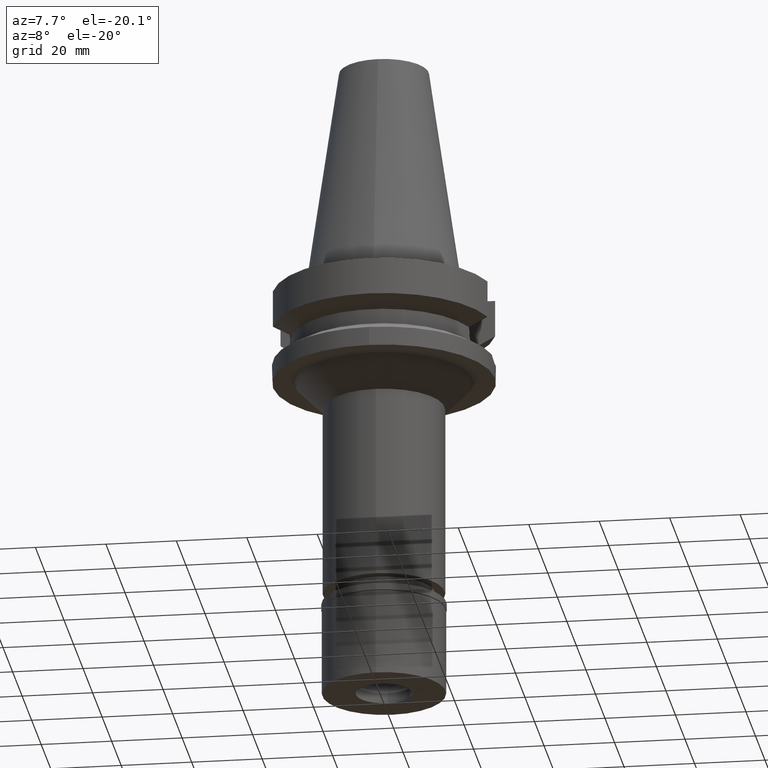
[diagram: clean part render]
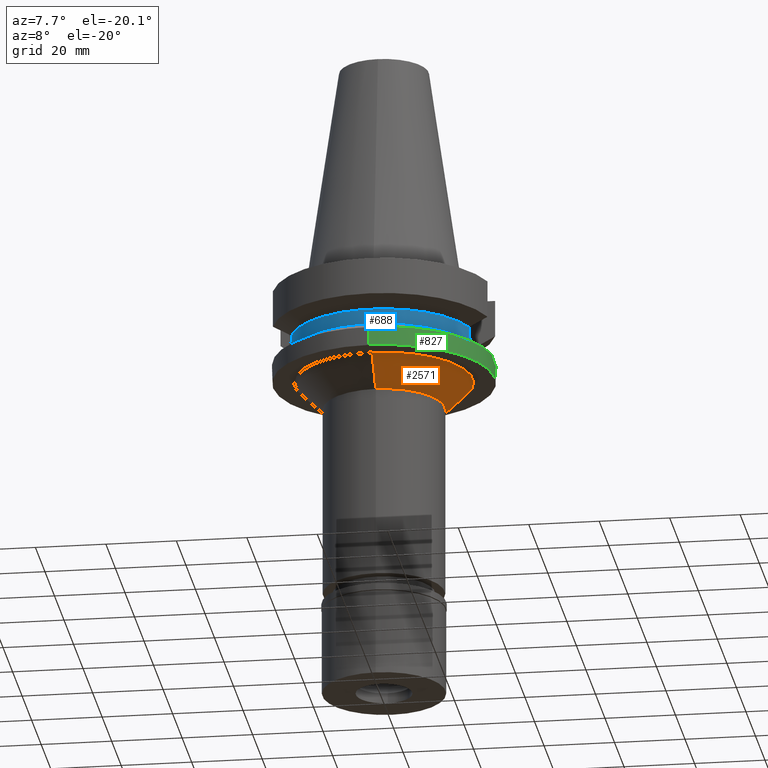
[diagram: same view with three faces highlighted in distinct colors, each labeled with its STEP entity id]
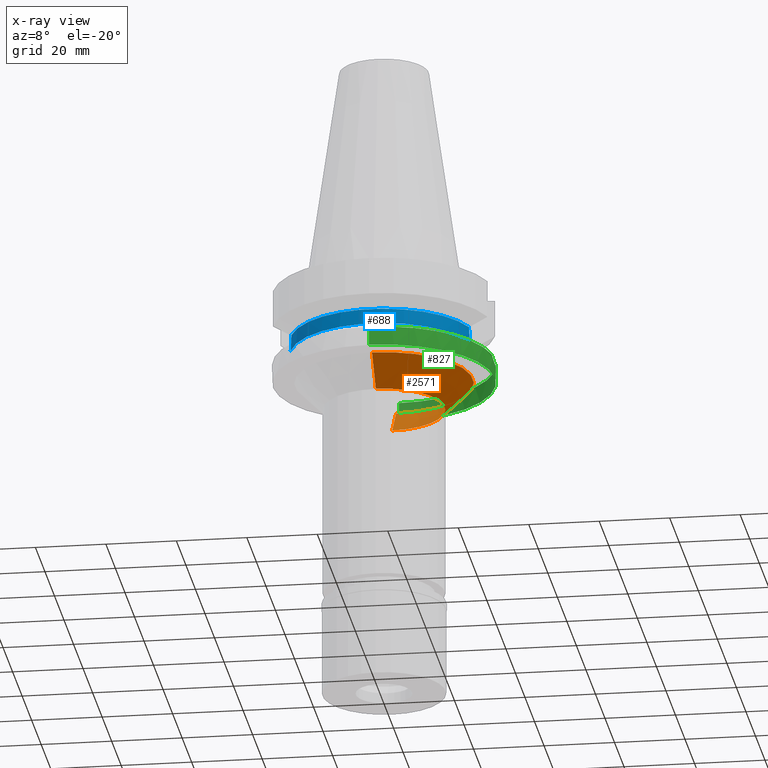
[diagram: x-ray of the same camera — body ghosted, the three highlighted faces saturated]
A machine part, auxiliary view with three faces highlighted in distinct colors.
The next image is the same camera in x-ray (body ghosted, the three faces saturated) — at least one of them is partly hidden behind the body in this view.
Their STEP definitions:

[orange] entity #2571 — the highlighted conical surface has half-angle 45 deg.
#6 = DIRECTION ( 'NONE',  ( 0.0000000000000000000, 0.0000000000000000000, -1.000000000000000000 ) ) ;
#9 = LINE ( 'NONE', #1405, #2650 ) ;
#50 = ORIENTED_EDGE ( 'NONE', *, *, #811, .F. ) ;
#66 = VECTOR ( 'NONE', #1229, 1000.000000000000114 ) ;
#201 = DIRECTION ( 'NONE',  ( 0.0000000000000000000, 0.0000000000000000000, 1.000000000000000000 ) ) ;
#263 = LINE ( 'NONE', #2226, #66 ) ;
#318 = CIRCLE ( 'NONE', #2488, 25.25000000000000000 ) ;
#344 = EDGE_CURVE ( 'NONE', #1218, #2852, #263, .T. ) ;
#632 = DIRECTION ( 'NONE',  ( 0.0000000000000000000, 0.0000000000000000000, -1.000000000000000000 ) ) ;
#679 = DIRECTION ( 'NONE',  ( 0.0000000000000000000, 1.000000000000000000, 0.0000000000000000000 ) ) ;
#811 = EDGE_CURVE ( 'NONE', #2852, #1537, #1529, .T. ) ;
#947 = CARTESIAN_POINT ( 'NONE',  ( 0.0000000000000000000, 0.0000000000000000000, -35.00000000000000000 ) ) ;
#1148 = DIRECTION ( 'NONE',  ( 0.0000000000000000000, 1.000000000000000000, 0.0000000000000000000 ) ) ;
#1205 = CARTESIAN_POINT ( 'NONE',  ( 0.0000000000000000000, -17.25000000000000000, -35.00000000000000000 ) ) ;
#1218 = VERTEX_POINT ( 'NONE', #1333 ) ;
#1229 = DIRECTION ( 'NONE',  ( 0.0000000000000000000, -0.7071067811865474617, -0.7071067811865474617 ) ) ;
#1295 = CONICAL_SURFACE ( 'NONE', #1388, 21.25000000000000000, 0.7853981633972997312 ) ;
#1310 = EDGE_CURVE ( 'NONE', #1218, #2656, #318, .T. ) ;
#1333 = CARTESIAN_POINT ( 'NONE',  ( 0.0000000000000000000, 25.25000000000000000, -27.00000000000000000 ) ) ;
#1388 = AXIS2_PLACEMENT_3D ( 'NONE', #2083, #201, #1148 ) ;
#1405 = CARTESIAN_POINT ( 'NONE',  ( 0.0000000000000000000, -25.25000000000000000, -27.00000000000000000 ) ) ;
#1529 = CIRCLE ( 'NONE', #2033, 17.25000000000000000 ) ;
#1537 = VERTEX_POINT ( 'NONE', #1205 ) ;
#1605 = ORIENTED_EDGE ( 'NONE', *, *, #344, .F. ) ;
#1896 = EDGE_CURVE ( 'NONE', #2656, #1537, #9, .T. ) ;
#1904 = EDGE_LOOP ( 'NONE', ( #2326, #2085, #50, #1605 ) ) ;
#2033 = AXIS2_PLACEMENT_3D ( 'NONE', #947, #6, #679 ) ;
#2083 = CARTESIAN_POINT ( 'NONE',  ( 0.0000000000000000000, 0.0000000000000000000, -31.00000000000000000 ) ) ;
#2085 = ORIENTED_EDGE ( 'NONE', *, *, #1896, .T. ) ;
#2226 = CARTESIAN_POINT ( 'NONE',  ( 0.0000000000000000000, 25.25000000000000000, -27.00000000000000000 ) ) ;
#2326 = ORIENTED_EDGE ( 'NONE', *, *, #1310, .T. ) ;
#2488 = AXIS2_PLACEMENT_3D ( 'NONE', #2790, #632, #2803 ) ;
#2563 = FACE_OUTER_BOUND ( 'NONE', #1904, .T. ) ;
#2571 = ADVANCED_FACE ( 'NONE', ( #2563 ), #1295, .T. ) ;
#2650 = VECTOR ( 'NONE', #2861, 1000.000000000000114 ) ;
#2656 = VERTEX_POINT ( 'NONE', #2836 ) ;
#2697 = CARTESIAN_POINT ( 'NONE',  ( 0.0000000000000000000, 17.25000000000000000, -35.00000000000000000 ) ) ;
#2790 = CARTESIAN_POINT ( 'NONE',  ( 0.0000000000000000000, 0.0000000000000000000, -27.00000000000000000 ) ) ;
#2803 = DIRECTION ( 'NONE',  ( 0.0000000000000000000, 1.000000000000000000, 0.0000000000000000000 ) ) ;
#2836 = CARTESIAN_POINT ( 'NONE',  ( 0.0000000000000000000, -25.25000000000000000, -27.00000000000000000 ) ) ;
#2852 = VERTEX_POINT ( 'NONE', #2697 ) ;
#2861 = DIRECTION ( 'NONE',  ( 0.0000000000000000000, 0.7071067811865474617, -0.7071067811865474617 ) ) ;

[blue] entity #688 — the highlighted cylindrical surface (partial cylindrical patch) has radius 26.5 mm, axis along (0, 0, -1).
#47 = CARTESIAN_POINT ( 'NONE',  ( -25.24772266958000344, -8.049999999999997158, -15.58980474828395124 ) ) ;
#63 = CARTESIAN_POINT ( 'NONE',  ( -25.27267964220134999, -7.973335156003495960, -16.24499043123465469 ) ) ;
#121 = ORIENTED_EDGE ( 'NONE', *, *, #1439, .F. ) ;
#151 = DIRECTION ( 'NONE',  ( 0.0000000000000000000, 0.0000000000000000000, -1.000000000000000000 ) ) ;
#169 = CARTESIAN_POINT ( 'NONE',  ( 0.0000000000000000000, 0.0000000000000000000, 0.0000000000000000000 ) ) ;
#178 = VERTEX_POINT ( 'NONE', #510 ) ;
#211 = VERTEX_POINT ( 'NONE', #491 ) ;
#242 = VERTEX_POINT ( 'NONE', #2720 ) ;
#253 = CARTESIAN_POINT ( 'NONE',  ( -25.53175183775000079, -7.097862220092999941, -18.74774300138999905 ) ) ;
#429 = CARTESIAN_POINT ( 'NONE',  ( -25.24772266958000344, -8.050000000000000711, -14.94999999999999929 ) ) ;
#483 = CARTESIAN_POINT ( 'NONE',  ( -25.53175183775000079, -7.097862220092999941, -18.74774300138999905 ) ) ;
#491 = CARTESIAN_POINT ( 'NONE',  ( -25.24772266958000344, -8.050000000000000711, -14.94999999999999929 ) ) ;
#510 = CARTESIAN_POINT ( 'NONE',  ( -25.24772413135000093, -8.049995415363998319, -14.45229203120999983 ) ) ;
#592 = DIRECTION ( 'NONE',  ( 0.0000000000000000000, -1.000000000000000000, 0.0000000000000000000 ) ) ;
#619 = DIRECTION ( 'NONE',  ( 0.0000000000000000000, -1.000000000000000000, 0.0000000000000000000 ) ) ;
#662 = B_SPLINE_CURVE_WITH_KNOTS ( 'NONE', 3,
 ( #717, #2896, #989, #2168, #950, #1897, #700, #738, #2204, #1971, #1170, #1696, #2659, #683 ),
 .UNSPECIFIED., .F., .F.,
 ( 4, 2, 2, 1, 1, 2, 2, 4 ),
 ( 0.0000000000000000000, 0.2499999999999802380, 0.3749999999999716893, 0.4374999999999675260, 0.4687499999999653055, 0.4843749999999642508, 0.4999999999999631406, 1.000000000000000000 ),
 .UNSPECIFIED. ) ;
#683 = CARTESIAN_POINT ( 'NONE',  ( 25.53175183775000079, -7.097862220092999941, -18.74774300138999905 ) ) ;
#688 = ADVANCED_FACE ( 'NONE', ( #2332 ), #1346, .T. ) ;
#700 = CARTESIAN_POINT ( 'NONE',  ( 25.30212919435223284, -7.877667573928276212, -16.61042047343354255 ) ) ;
#717 = CARTESIAN_POINT ( 'NONE',  ( 25.24772266958000344, -8.050000000000000711, -14.94999999999999929 ) ) ;
#720 = ORIENTED_EDGE ( 'NONE', *, *, #2098, .T. ) ;
#738 = CARTESIAN_POINT ( 'NONE',  ( 25.31202572170775156, -7.845729406561155805, -16.75279821065855757 ) ) ;
#795 = CIRCLE ( 'NONE', #2392, 26.50000000000000711 ) ;
#903 = DIRECTION ( 'NONE',  ( 1.015936079808008228E-06, 3.186346227935026084E-06, -0.9999999999944074736 ) ) ;
#904 = VERTEX_POINT ( 'NONE', #3090 ) ;
#915 = EDGE_CURVE ( 'NONE', #211, #178, #2397, .T. ) ;
#950 = CARTESIAN_POINT ( 'NONE',  ( 25.28048358772242565, -7.947040743729065326, -16.24400980703460817 ) ) ;
#989 = CARTESIAN_POINT ( 'NONE',  ( 25.25396284446427586, -8.030907492737396680, -15.59360398779302592 ) ) ;
#1170 = CARTESIAN_POINT ( 'NONE',  ( 25.32118155423427197, -7.816096717230704982, -16.87652453445180356 ) ) ;
#1209 = EDGE_LOOP ( 'NONE', ( #2341, #2175, #2485, #121, #720, #2860 ) ) ;
#1220 = AXIS2_PLACEMENT_3D ( 'NONE', #169, #2775, #619 ) ;
#1330 = CARTESIAN_POINT ( 'NONE',  ( 0.0000000000000000000, 0.0000000000000000000, -14.45225699861000024 ) ) ;
#1346 = CYLINDRICAL_SURFACE ( 'NONE', #1220, 26.50000000000000000 ) ;
#1439 = EDGE_CURVE ( 'NONE', #904, #242, #1661, .T. ) ;
#1446 = CIRCLE ( 'NONE', #2053, 26.50000000000000000 ) ;
#1455 = DIRECTION ( 'NONE',  ( -2.936997819735885950E-06, 9.211497301376640057E-06, 0.9999999999532611650 ) ) ;
#1498 = CARTESIAN_POINT ( 'NONE',  ( -25.32546393109256400, -7.802212764488517749, -16.93200521433119476 ) ) ;
#1513 = CARTESIAN_POINT ( 'NONE',  ( -25.34384264179432122, -7.742472632678496502, -17.15618260524923855 ) ) ;
#1580 = VECTOR ( 'NONE', #1455, 1000.000000000000114 ) ;
#1661 = LINE ( 'NONE', #2134, #2093 ) ;
#1684 = VERTEX_POINT ( 'NONE', #1731 ) ;
#1696 = CARTESIAN_POINT ( 'NONE',  ( 25.36814761481407388, -7.663830712787968125, -17.48803584566239522 ) ) ;
#1719 = CARTESIAN_POINT ( 'NONE',  ( 0.0000000000000000000, 0.0000000000000000000, -18.74774300138999905 ) ) ;
#1731 = CARTESIAN_POINT ( 'NONE',  ( 25.53175183775000079, -7.097862220092999941, -18.74774300138999905 ) ) ;
#1759 = B_SPLINE_CURVE_WITH_KNOTS ( 'NONE', 3,
 ( #253, #2206, #2920, #2221, #2155, #2439, #1513, #1917, #2661, #1498, #2419, #63, #47, #2642 ),
 .UNSPECIFIED., .F., .F.,
 ( 4, 2, 2, 1, 1, 2, 2, 4 ),
 ( 0.0000000000000000000, 0.2499999999999921174, 0.3749999999999881761, 0.4374999999999861222, 0.4687499999999865108, 0.4843749999999866218, 0.4999999999999866773, 1.000000000000000000 ),
 .UNSPECIFIED. ) ;
#1837 = EDGE_CURVE ( 'NONE', #242, #1684, #662, .T. ) ;
#1897 = CARTESIAN_POINT ( 'NONE',  ( 25.29452398121202705, -7.902090651739900551, -16.48828405129962604 ) ) ;
#1917 = CARTESIAN_POINT ( 'NONE',  ( -25.33288764353040534, -7.778115188357301868, -17.02509724676229297 ) ) ;
#1971 = CARTESIAN_POINT ( 'NONE',  ( 25.31950905643224559, -7.821515286682111601, -16.85442525726396568 ) ) ;
#2053 = AXIS2_PLACEMENT_3D ( 'NONE', #1719, #2157, #592 ) ;
#2093 = VECTOR ( 'NONE', #903, 1000.000000000000227 ) ;
#2098 = EDGE_CURVE ( 'NONE', #904, #178, #795, .T. ) ;
#2134 = CARTESIAN_POINT ( 'NONE',  ( 25.24772216389000334, -8.050001586020000488, -14.45224488001999852 ) ) ;
#2155 = CARTESIAN_POINT ( 'NONE',  ( -25.37569502946231381, -7.637838761525059361, -17.49780446169117809 ) ) ;
#2157 = DIRECTION ( 'NONE',  ( 0.0000000000000000000, 0.0000000000000000000, 1.000000000000000000 ) ) ;
#2168 = CARTESIAN_POINT ( 'NONE',  ( 25.27268336911708602, -7.971811480119975535, -16.08115959878772472 ) ) ;
#2175 = ORIENTED_EDGE ( 'NONE', *, *, #2807, .T. ) ;
#2204 = CARTESIAN_POINT ( 'NONE',  ( 25.31648647172267985, -7.831300037036133865, -16.81378020974167953 ) ) ;
#2206 = CARTESIAN_POINT ( 'NONE',  ( -25.48480632954720804, -7.266730116954877694, -18.43213421351286740 ) ) ;
#2221 = CARTESIAN_POINT ( 'NONE',  ( -25.39161415867715732, -7.584927955075060346, -17.65164487453349906 ) ) ;
#2332 = FACE_OUTER_BOUND ( 'NONE', #1209, .T. ) ;
#2341 = ORIENTED_EDGE ( 'NONE', *, *, #3016, .F. ) ;
#2392 = AXIS2_PLACEMENT_3D ( 'NONE', #1330, #151, #3065 ) ;
#2397 = LINE ( 'NONE', #429, #1580 ) ;
#2419 = CARTESIAN_POINT ( 'NONE',  ( -25.32415339823289102, -7.806463147631060195, -16.91521530244357052 ) ) ;
#2439 = CARTESIAN_POINT ( 'NONE',  ( -25.35408242310599647, -7.708967322968012681, -17.26962711312151200 ) ) ;
#2485 = ORIENTED_EDGE ( 'NONE', *, *, #1837, .F. ) ;
#2642 = CARTESIAN_POINT ( 'NONE',  ( -25.24772266958000344, -8.050000000000000711, -14.94999999999999929 ) ) ;
#2659 = CARTESIAN_POINT ( 'NONE',  ( 25.43786330466700107, -7.435589081068775030, -18.11654212066471814 ) ) ;
#2661 = CARTESIAN_POINT ( 'NONE',  ( -25.32840508997437823, -7.792668837071429877, -16.96920308233706720 ) ) ;
#2720 = CARTESIAN_POINT ( 'NONE',  ( 25.24772266958000344, -8.050000000000000711, -14.94999999999999929 ) ) ;
#2754 = VERTEX_POINT ( 'NONE', #483 ) ;
#2775 = DIRECTION ( 'NONE',  ( 0.0000000000000000000, 0.0000000000000000000, -1.000000000000000000 ) ) ;
#2807 = EDGE_CURVE ( 'NONE', #2754, #1684, #1446, .T. ) ;
#2860 = ORIENTED_EDGE ( 'NONE', *, *, #915, .F. ) ;
#2896 = CARTESIAN_POINT ( 'NONE',  ( 25.24772266958000344, -8.050000000000000711, -15.26991324139337358 ) ) ;
#2920 = CARTESIAN_POINT ( 'NONE',  ( -25.44390372125364053, -7.408325733511035516, -18.11690357814810426 ) ) ;
#3016 = EDGE_CURVE ( 'NONE', #2754, #211, #1759, .T. ) ;
#3065 = DIRECTION ( 'NONE',  ( 0.9527442516822307583, -0.3037735849057093818, 0.0000000000000000000 ) ) ;
#3090 = CARTESIAN_POINT ( 'NONE',  ( 25.24772266958000344, -8.050000000000000711, -14.45225699861000024 ) ) ;

[green] entity #827 — the highlighted cylindrical surface (partial cylindrical patch) has radius 31.5 mm, axis along (0, 0, -1).
#62 = VERTEX_POINT ( 'NONE', #1097 ) ;
#225 = ORIENTED_EDGE ( 'NONE', *, *, #316, .T. ) ;
#297 = LINE ( 'NONE', #776, #1503 ) ;
#316 = EDGE_CURVE ( 'NONE', #348, #1467, #1523, .T. ) ;
#348 = VERTEX_POINT ( 'NONE', #1796 ) ;
#406 = B_SPLINE_CURVE_WITH_KNOTS ( 'NONE', 3,
 ( #1852, #2105, #629, #901, #458, #677, #2130, #2377, #1637, #751, #1402, #2599 ),
 .UNSPECIFIED., .F., .F.,
 ( 4, 2, 2, 2, 2, 4 ),
 ( 0.0000000000000000000, 0.2500000000000005551, 0.5000000000000011102, 0.6250000000000008882, 0.7500000000000007772, 1.000000000000000000 ),
 .UNSPECIFIED. ) ;
#458 = CARTESIAN_POINT ( 'NONE',  ( 31.44158116646596923, -1.955103411715561013, -22.76909304465759476 ) ) ;
#459 = FACE_OUTER_BOUND ( 'NONE', #1266, .T. ) ;
#629 = CARTESIAN_POINT ( 'NONE',  ( 31.49259412242495060, -0.7874781761588219853, -22.97109479641749985 ) ) ;
#636 = CARTESIAN_POINT ( 'NONE',  ( 0.0000000000000000000, -31.50000000000000000, -27.00000000000000000 ) ) ;
#677 = CARTESIAN_POINT ( 'NONE',  ( 31.39916663536083874, -2.525608541388664197, -22.59614456801665483 ) ) ;
#684 = AXIS2_PLACEMENT_3D ( 'NONE', #2293, #873, #2058 ) ;
#748 = CARTESIAN_POINT ( 'NONE',  ( 0.0000000000000000000, 0.0000000000000000000, -21.63449434733000132 ) ) ;
#751 = CARTESIAN_POINT ( 'NONE',  ( 31.27123001953995640, -3.806912311195480569, -22.05416774109503208 ) ) ;
#752 = DIRECTION ( 'NONE',  ( 0.0000000000000000000, 0.0000000000000000000, 1.000000000000000000 ) ) ;
#776 = CARTESIAN_POINT ( 'NONE',  ( 0.0000000000000000000, 31.50000000000000000, -21.63449434733000132 ) ) ;
#779 = DIRECTION ( 'NONE',  ( 0.0000000000000000000, 1.000000000000000000, 0.0000000000000000000 ) ) ;
#789 = CARTESIAN_POINT ( 'NONE',  ( 0.0000000000000000000, -31.50000000000000000, -21.63449434733000132 ) ) ;
#814 = CARTESIAN_POINT ( 'NONE',  ( 31.49999994687999916, 0.0000000000000000000, -22.99999998957000003 ) ) ;
#827 = ADVANCED_FACE ( 'NONE', ( #459 ), #2827, .T. ) ;
#873 = DIRECTION ( 'NONE',  ( 0.0000000000000000000, 0.0000000000000000000, -1.000000000000000000 ) ) ;
#901 = CARTESIAN_POINT ( 'NONE',  ( 31.46325238243952072, -1.570781957062914236, -22.85518007120730388 ) ) ;
#916 = CARTESIAN_POINT ( 'NONE',  ( 0.0000000000000000000, -31.50000000000000000, -21.63449434733000132 ) ) ;
#917 = ORIENTED_EDGE ( 'NONE', *, *, #2217, .T. ) ;
#993 = LINE ( 'NONE', #789, #1140 ) ;
#1016 = DIRECTION ( 'NONE',  ( 0.0000000000000000000, 0.0000000000000000000, -1.000000000000000000 ) ) ;
#1035 = EDGE_CURVE ( 'NONE', #1172, #1516, #1075, .T. ) ;
#1075 = CIRCLE ( 'NONE', #2834, 31.50000000000000000 ) ;
#1081 = CARTESIAN_POINT ( 'NONE',  ( 31.17899877608999759, 4.485536235554000051, -21.63449434733000132 ) ) ;
#1097 = CARTESIAN_POINT ( 'NONE',  ( 31.17899877608999759, -4.485536235554000051, -21.63449434733000132 ) ) ;
#1140 = VECTOR ( 'NONE', #1262, 1000.000000000000000 ) ;
#1172 = VERTEX_POINT ( 'NONE', #636 ) ;
#1238 = CARTESIAN_POINT ( 'NONE',  ( 31.49999994687999916, 0.0000000000000000000, -22.99999998957000003 ) ) ;
#1262 = DIRECTION ( 'NONE',  ( 0.0000000000000000000, -1.099151708819000049E-13, -1.000000000000000000 ) ) ;
#1266 = EDGE_LOOP ( 'NONE', ( #2576, #2523, #1548, #2379, #225, #1566, #917 ) ) ;
#1402 = CARTESIAN_POINT ( 'NONE',  ( 31.22673952725636681, -4.153689886764722061, -21.85717518821190097 ) ) ;
#1407 = VERTEX_POINT ( 'NONE', #916 ) ;
#1420 = CARTESIAN_POINT ( 'NONE',  ( 0.0000000000000000000, 0.0000000000000000000, 0.0000000000000000000 ) ) ;
#1465 = DIRECTION ( 'NONE',  ( 0.0000000000000000000, 1.099151708819000049E-13, -1.000000000000000000 ) ) ;
#1467 = VERTEX_POINT ( 'NONE', #2604 ) ;
#1503 = VECTOR ( 'NONE', #1465, 1000.000000000000000 ) ;
#1516 = VERTEX_POINT ( 'NONE', #2169 ) ;
#1523 = CIRCLE ( 'NONE', #2737, 31.50000000000000000 ) ;
#1548 = ORIENTED_EDGE ( 'NONE', *, *, #1035, .T. ) ;
#1566 = ORIENTED_EDGE ( 'NONE', *, *, #2010, .T. ) ;
#1624 = AXIS2_PLACEMENT_3D ( 'NONE', #1420, #1910, #1692 ) ;
#1637 = CARTESIAN_POINT ( 'NONE',  ( 31.33092732167464689, -3.264367509023630376, -22.31112413842158659 ) ) ;
#1692 = DIRECTION ( 'NONE',  ( 0.0000000000000000000, -1.000000000000000000, 0.0000000000000000000 ) ) ;
#1796 = CARTESIAN_POINT ( 'NONE',  ( 0.0000000000000000000, 31.50000000000000000, -21.63449434733000132 ) ) ;
#1822 = VERTEX_POINT ( 'NONE', #1238 ) ;
#1852 = CARTESIAN_POINT ( 'NONE',  ( 31.49999994687999916, 0.0000000000000000000, -22.99999998957000003 ) ) ;
#1910 = DIRECTION ( 'NONE',  ( 0.0000000000000000000, 0.0000000000000000000, -1.000000000000000000 ) ) ;
#2010 = EDGE_CURVE ( 'NONE', #1467, #1822, #2608, .T. ) ;
#2058 = DIRECTION ( 'NONE',  ( 0.9898094849552905306, -0.1423979757318985240, 0.0000000000000000000 ) ) ;
#2105 = CARTESIAN_POINT ( 'NONE',  ( 31.50000000000000711, -0.3946751339968562200, -22.99999998957000003 ) ) ;
#2114 = EDGE_CURVE ( 'NONE', #62, #1407, #2653, .T. ) ;
#2130 = CARTESIAN_POINT ( 'NONE',  ( 31.38348490648153799, -2.713186403075953823, -22.53162631738891264 ) ) ;
#2169 = CARTESIAN_POINT ( 'NONE',  ( 0.0000000000000000000, 31.50000000000000000, -27.00000000000000000 ) ) ;
#2217 = EDGE_CURVE ( 'NONE', #1822, #62, #406, .T. ) ;
#2266 = CARTESIAN_POINT ( 'NONE',  ( 31.50000000000000000, 0.7893756722539666537, -22.99999998957000358 ) ) ;
#2280 = CARTESIAN_POINT ( 'NONE',  ( 31.35694685681279736, 3.093519140186014038, -22.42398081544561705 ) ) ;
#2293 = CARTESIAN_POINT ( 'NONE',  ( 0.0000000000000000000, 0.0000000000000000000, -21.63449434733000132 ) ) ;
#2377 = CARTESIAN_POINT ( 'NONE',  ( 31.34930395801385927, -3.083122878065013950, -22.38885229930528808 ) ) ;
#2379 = ORIENTED_EDGE ( 'NONE', *, *, #2812, .F. ) ;
#2487 = CARTESIAN_POINT ( 'NONE',  ( 31.46967416866528566, 1.577207839734384054, -22.88365376544188123 ) ) ;
#2523 = ORIENTED_EDGE ( 'NONE', *, *, #3004, .T. ) ;
#2576 = ORIENTED_EDGE ( 'NONE', *, *, #2114, .T. ) ;
#2599 = CARTESIAN_POINT ( 'NONE',  ( 31.17899877608999759, -4.485536235554000051, -21.63449434733000132 ) ) ;
#2604 = CARTESIAN_POINT ( 'NONE',  ( 31.17899877608999759, 4.485536235554000051, -21.63449434733000132 ) ) ;
#2608 = B_SPLINE_CURVE_WITH_KNOTS ( 'NONE', 3,
 ( #1081, #2728, #2280, #2487, #2266, #814 ),
 .UNSPECIFIED., .F., .F.,
 ( 4, 2, 4 ),
 ( 0.0000000000000000000, 0.5000000000000000000, 1.000000000000000000 ),
 .UNSPECIFIED. ) ;
#2653 = CIRCLE ( 'NONE', #684, 31.50000000000001421 ) ;
#2728 = CARTESIAN_POINT ( 'NONE',  ( 31.27447715648698434, 3.821865238563812994, -22.07984146721787155 ) ) ;
#2737 = AXIS2_PLACEMENT_3D ( 'NONE', #748, #1016, #779 ) ;
#2812 = EDGE_CURVE ( 'NONE', #348, #1516, #297, .T. ) ;
#2827 = CYLINDRICAL_SURFACE ( 'NONE', #1624, 31.50000000000000000 ) ;
#2834 = AXIS2_PLACEMENT_3D ( 'NONE', #2959, #752, #2929 ) ;
#2929 = DIRECTION ( 'NONE',  ( 0.0000000000000000000, -1.000000000000000000, 0.0000000000000000000 ) ) ;
#2959 = CARTESIAN_POINT ( 'NONE',  ( 0.0000000000000000000, 0.0000000000000000000, -27.00000000000000000 ) ) ;
#3004 = EDGE_CURVE ( 'NONE', #1407, #1172, #993, .T. ) ;